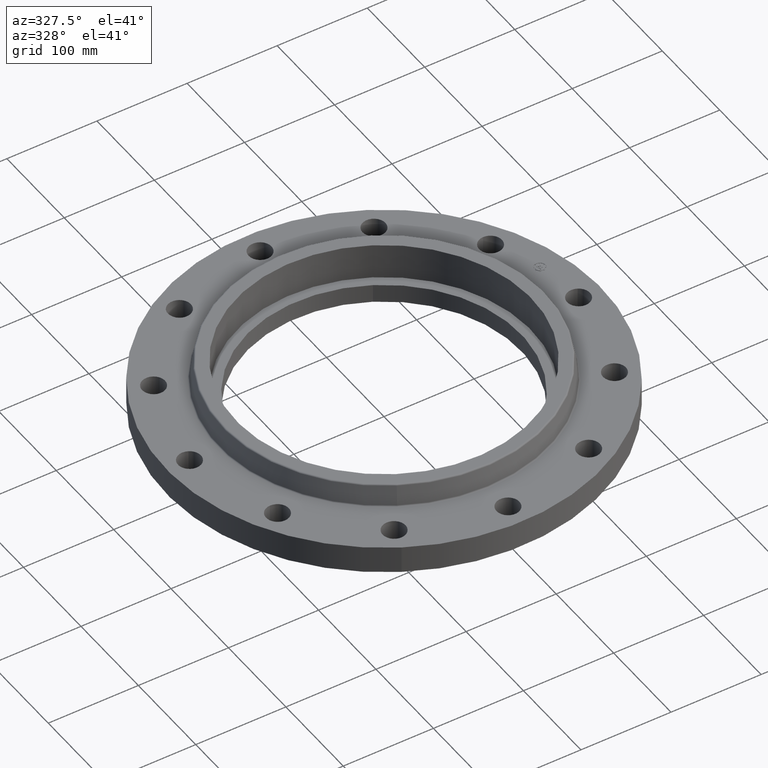
[diagram: clean part render]
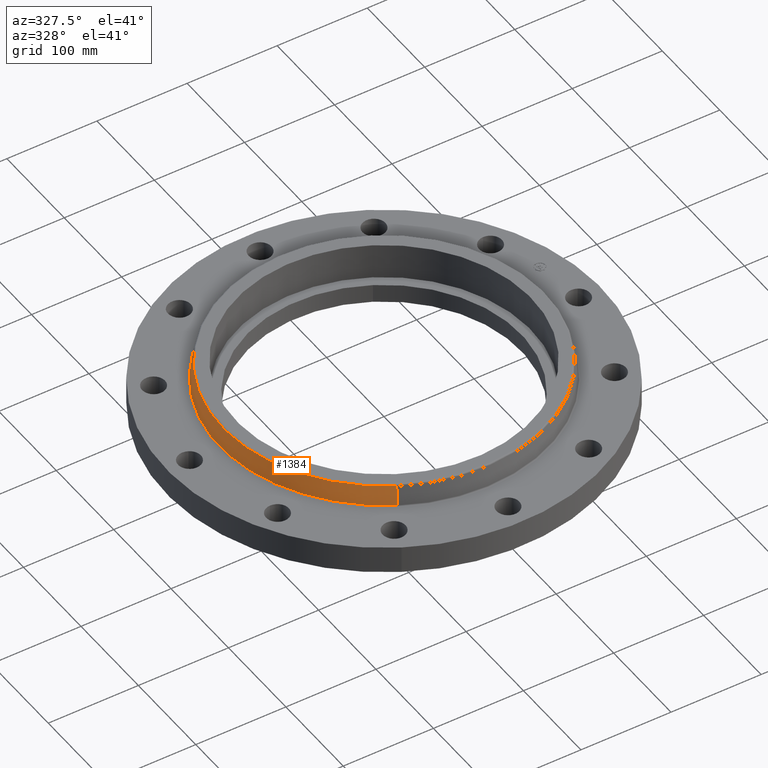
[diagram: same view with one face highlighted and labeled with its STEP entity id]
A machine part, auxiliary view. The second image highlights one B-rep face of the part: STEP entity #1384.
In plain terms, the highlighted conical surface has half-angle 10 deg.
Its self-contained STEP definition (entity closure, byte-faithful):
#1289=AXIS2_PLACEMENT_3D('Circle Axis2P3D',#1287,#1288,$) ;
#1345=AXIS2_PLACEMENT_3D('Cone Axis2P3D',#1342,#1343,#1344) ;
#1375=AXIS2_PLACEMENT_3D('Circle Axis2P3D',#1373,#1374,$) ;
#1260=CARTESIAN_POINT('Vertex',(3.44287825089,6.30214636561,1.23958110934)) ;
#1267=CARTESIAN_POINT('Vertex',(-3.44287825089,-6.30214636561,1.23958110934)) ;
#1287=CARTESIAN_POINT('Axis2P3D Location',(0.,0.,1.23958110934)) ;
#1342=CARTESIAN_POINT('Axis2P3D Location',(0.,0.,2.07041889067)) ;
#1347=CARTESIAN_POINT('Line Origine',(3.40776054175,6.23786383021,1.65500000001)) ;
#1351=CARTESIAN_POINT('Vertex',(3.37264283261,6.17358129481,2.07041889067)) ;
#1358=CARTESIAN_POINT('Vertex',(-3.37264283261,-6.17358129481,2.07041889067)) ;
#1361=CARTESIAN_POINT('Line Origine',(-3.40776054175,-6.23786383021,1.65500000001)) ;
#1373=CARTESIAN_POINT('Axis2P3D Location',(0.,0.,2.07041889067)) ;
#1288=DIRECTION('Axis2P3D Direction',(0.,0.,-0.0393700787402)) ;
#1343=DIRECTION('Axis2P3D Direction',(0.,0.,-0.0393700787402)) ;
#1344=DIRECTION('Axis2P3D XDirection',(-0.0188750212049,-0.0345504945626,0.)) ;
#1348=DIRECTION('Vector Direction',(0.00327761303565,0.00599963041829,-0.03877195878)) ;
#1362=DIRECTION('Vector Direction',(-0.00327761303565,-0.00599963041829,-0.03877195878)) ;
#1374=DIRECTION('Axis2P3D Direction',(0.,0.,-0.0393700787402)) ;
#1349=VECTOR('Line Direction',#1348,0.0393700787402) ;
#1363=VECTOR('Line Direction',#1362,0.0393700787402) ;
#1379=ORIENTED_EDGE('',*,*,#1291,.F.) ;
#1380=ORIENTED_EDGE('',*,*,#1365,.T.) ;
#1381=ORIENTED_EDGE('',*,*,#1377,.T.) ;
#1382=ORIENTED_EDGE('',*,*,#1353,.F.) ;
#1384=ADVANCED_FACE('PartBody',(#1383),#1346,.T.) ;
#1290=CIRCLE('generated circle',#1289,7.18125751272) ;
#1376=CIRCLE('generated circle',#1375,7.03475839528) ;
#1346=CONICAL_SURFACE('Cone',#1345,7.03475839528,0.174532925199) ;
#1291=EDGE_CURVE('',#1268,#1261,#1290,.T.) ;
#1353=EDGE_CURVE('',#1261,#1352,#1350,.F.) ;
#1365=EDGE_CURVE('',#1268,#1359,#1364,.F.) ;
#1377=EDGE_CURVE('',#1359,#1352,#1376,.T.) ;
#1378=EDGE_LOOP('',(#1379,#1380,#1381,#1382)) ;
#1383=FACE_OUTER_BOUND('',#1378,.T.) ;
#1350=LINE('Line',#1347,#1349) ;
#1364=LINE('Line',#1361,#1363) ;
#1261=VERTEX_POINT('',#1260) ;
#1268=VERTEX_POINT('',#1267) ;
#1352=VERTEX_POINT('',#1351) ;
#1359=VERTEX_POINT('',#1358) ;